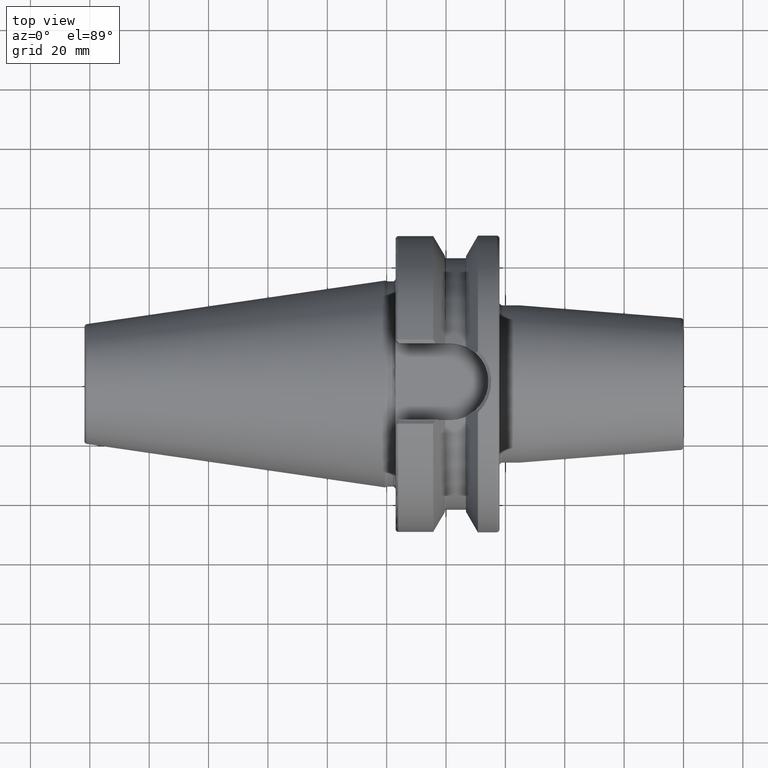
[diagram: clean part render]
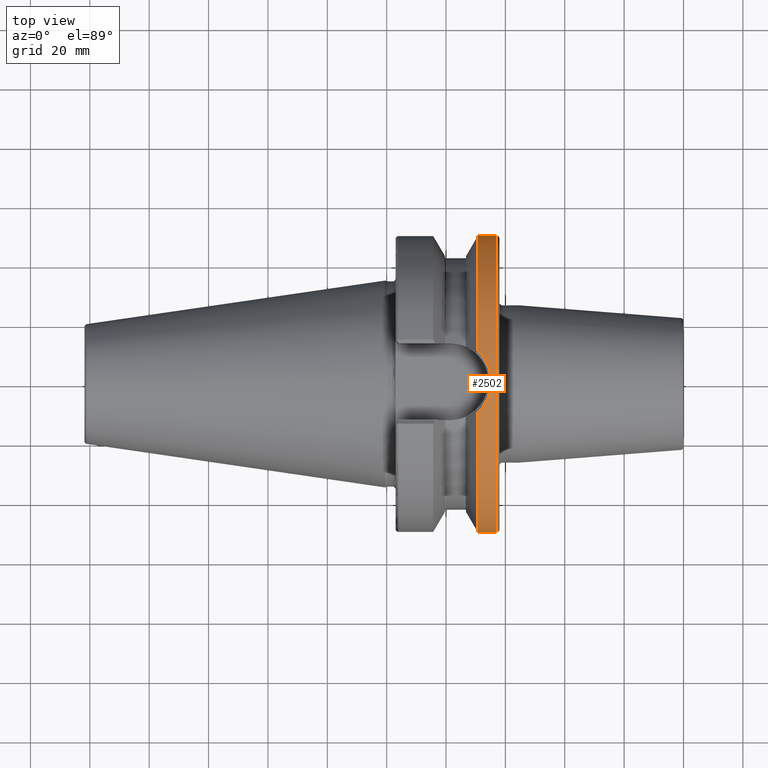
[diagram: same view with one face highlighted and labeled with its STEP entity id]
A machine part, top view. The second image highlights one B-rep face of the part: STEP entity #2502.
In plain terms, the highlighted cylindrical surface (partial cylindrical patch) has radius 49.9875 mm, axis along (1, 0, 0).
Its self-contained STEP definition (entity closure, byte-faithful):
#250=DIRECTION('',(-1.E0,0.E0,0.E0));
#251=VECTOR('',#250,6.269331763825E0);
#252=CARTESIAN_POINT('',(3.7E1,-4.99875E1,0.E0));
#253=LINE('',#252,#251);
#259=DIRECTION('',(-1.E0,0.E0,0.E0));
#260=VECTOR('',#259,6.269331763825E0);
#261=CARTESIAN_POINT('',(3.7E1,4.99875E1,0.E0));
#262=LINE('',#261,#260);
#782=CARTESIAN_POINT('',(3.073066823617E1,0.E0,0.E0));
#783=DIRECTION('',(1.E0,0.E0,0.E0));
#784=DIRECTION('',(0.E0,1.E0,0.E0));
#785=AXIS2_PLACEMENT_3D('',#782,#783,#784);
#787=CARTESIAN_POINT('',(3.7E1,0.E0,0.E0));
#788=DIRECTION('',(1.E0,0.E0,0.E0));
#789=DIRECTION('',(0.E0,1.E0,0.E0));
#790=AXIS2_PLACEMENT_3D('',#787,#788,#789);
#792=CARTESIAN_POINT('',(3.073066823617E1,0.E0,0.E0));
#793=DIRECTION('',(1.E0,0.E0,0.E0));
#794=DIRECTION('',(0.E0,-2.094051574285E-1,9.778289625708E-1));
#795=AXIS2_PLACEMENT_3D('',#792,#793,#794);
#797=CARTESIAN_POINT('',(3.073066823617E1,1.046765017837E1,4.887922315251E1));
#798=CARTESIAN_POINT('',(3.093824742254E1,1.027394156657E1,4.892071033431E1));
#799=CARTESIAN_POINT('',(3.161047010606E1,9.607576099682E0,4.905940702404E1));
#800=CARTESIAN_POINT('',(3.263517600486E1,8.361597131920E0,4.929233531601E1));
#801=CARTESIAN_POINT('',(3.366872655698E1,6.670162125591E0,4.955104267859E1));
#802=CARTESIAN_POINT('',(3.445683207094E1,4.858888640768E0,4.976248055972E1));
#803=CARTESIAN_POINT('',(3.498881883781E1,2.963029384908E0,4.991203919913E1));
#804=CARTESIAN_POINT('',(3.525852360168E1,1.017396108424E0,4.998994610559E1));
#805=CARTESIAN_POINT('',(3.526344205362E1,-9.445244441774E-1,4.999137984430E1));
#806=CARTESIAN_POINT('',(3.500362395847E1,-2.891033001447E0,4.991627963537E1));
#807=CARTESIAN_POINT('',(3.448138663547E1,-4.789289725446E0,4.976926316974E1));
#808=CARTESIAN_POINT('',(3.370271475997E1,-6.604336733999E0,4.955990954998E1));
#809=CARTESIAN_POINT('',(3.267803854162E1,-8.300983390707E0,4.930264159969E1));
#810=CARTESIAN_POINT('',(3.164433381328E1,-9.571446946705E0,4.906668367984E1));
#811=CARTESIAN_POINT('',(3.095620205386E1,-1.025716232725E1,4.892430305409E1));
#812=CARTESIAN_POINT('',(3.073066823617E1,-1.046764030696E1,4.887922526651E1));
#1224=CARTESIAN_POINT('',(3.073066823617E1,4.99875E1,0.E0));
#1225=CARTESIAN_POINT('',(3.073066823617E1,1.046765017837E1,4.887922315251E1));
#1226=VERTEX_POINT('',#1224);
#1227=VERTEX_POINT('',#1225);
#1228=CARTESIAN_POINT('',(3.073066823617E1,-4.99875E1,-1.224340637448E-14));
#1230=VERTEX_POINT('',#1228);
#1232=CARTESIAN_POINT('',(3.7E1,4.99875E1,0.E0));
#1233=VERTEX_POINT('',#1232);
#1234=CARTESIAN_POINT('',(3.7E1,-4.99875E1,0.E0));
#1235=VERTEX_POINT('',#1234);
#1236=CARTESIAN_POINT('',(3.073066823617E1,-1.046764030696E1,4.887922526651E1));
#1237=VERTEX_POINT('',#1236);
#2487=CARTESIAN_POINT('',(-1.0879E2,0.E0,0.E0));
#2488=DIRECTION('',(1.E0,0.E0,0.E0));
#2489=DIRECTION('',(0.E0,-1.E0,0.E0));
#2490=AXIS2_PLACEMENT_3D('',#2487,#2488,#2489);
#2491=CYLINDRICAL_SURFACE('',#2490,4.99875E1);
#2492=ORIENTED_EDGE('',*,*,#2389,.F.);
#2493=ORIENTED_EDGE('',*,*,#1759,.F.);
#2495=ORIENTED_EDGE('',*,*,#2494,.T.);
#2496=ORIENTED_EDGE('',*,*,#1755,.T.);
#2497=ORIENTED_EDGE('',*,*,#2402,.F.);
#2499=ORIENTED_EDGE('',*,*,#2498,.F.);
#2500=EDGE_LOOP('',(#2492,#2493,#2495,#2496,#2497,#2499));
#2501=FACE_OUTER_BOUND('',#2500,.F.);
#2502=ADVANCED_FACE('',(#2501),#2491,.T.);
#786=CIRCLE('',#785,4.99875E1);
#791=CIRCLE('',#790,4.99875E1);
#796=CIRCLE('',#795,4.99875E1);
#813=B_SPLINE_CURVE_WITH_KNOTS('',3,(#797,#798,#799,#800,#801,#802,#803,#804,
#805,#806,#807,#808,#809,#810,#811,#812),.UNSPECIFIED.,.F.,.F.,(4,1,1,1,1,1,1,1,
1,1,1,1,1,4),(0.E0,3.613843176766E-2,1.201923969829E-1,2.042463621981E-1,
2.883003274134E-1,3.723542926286E-1,4.564082578438E-1,5.404622230591E-1,
6.245161882743E-1,7.085701534895E-1,7.926241187048E-1,8.766780839200E-1,
9.607320491352E-1,1.E0),.UNSPECIFIED.);
#1755=EDGE_CURVE('',#1235,#1230,#253,.T.);
#1759=EDGE_CURVE('',#1233,#1226,#262,.T.);
#2389=EDGE_CURVE('',#1226,#1227,#786,.T.);
#2402=EDGE_CURVE('',#1237,#1230,#796,.T.);
#2494=EDGE_CURVE('',#1233,#1235,#791,.T.);
#2498=EDGE_CURVE('',#1227,#1237,#813,.T.);